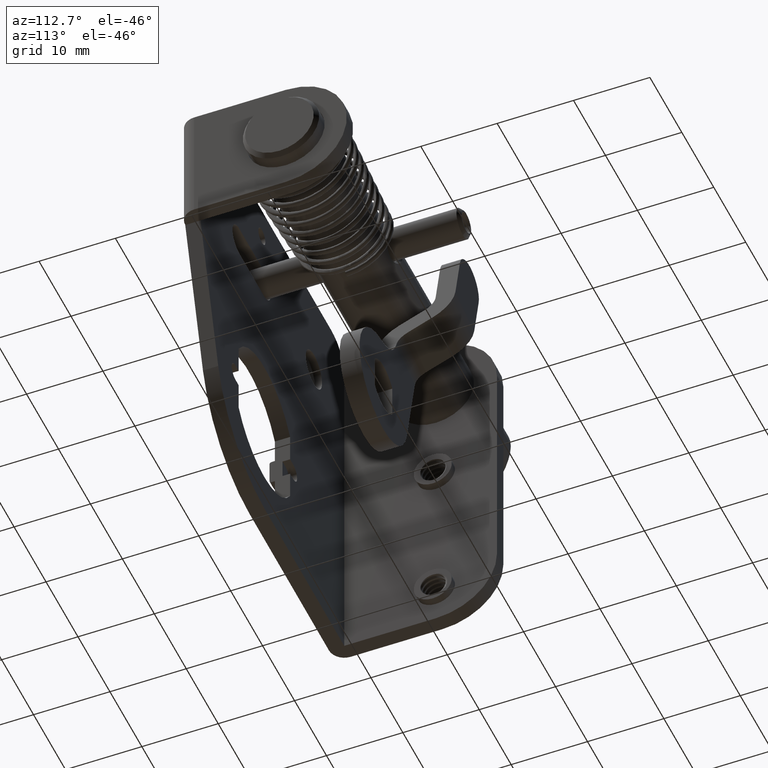
[diagram: clean part render]
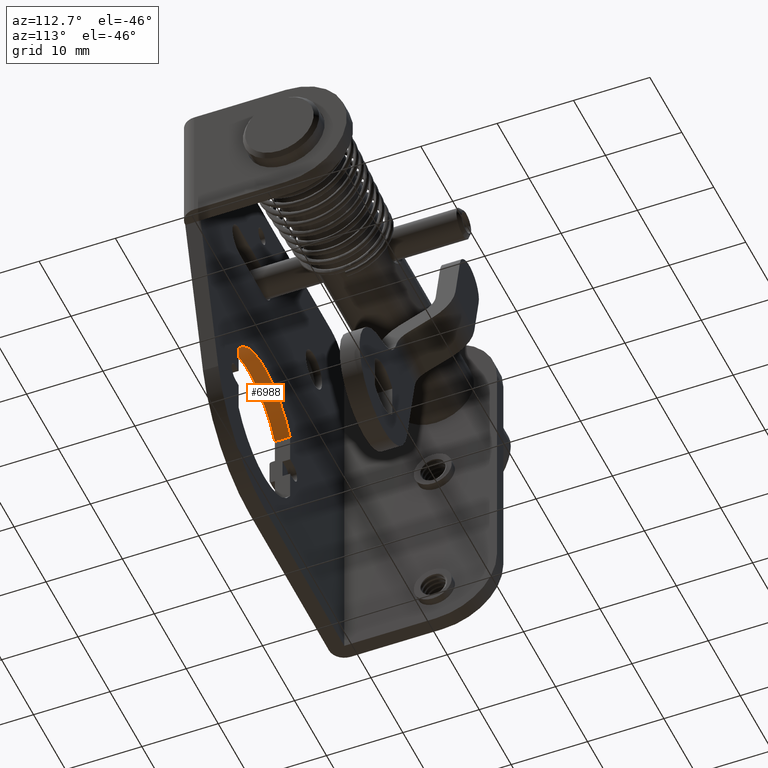
[diagram: same view with one face highlighted and labeled with its STEP entity id]
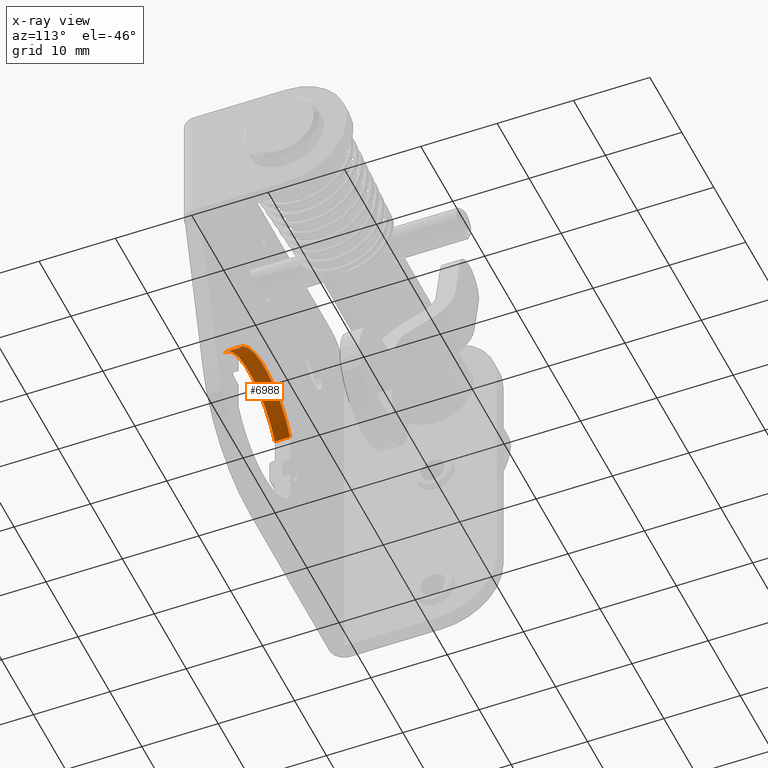
[diagram: x-ray of the same camera — body ghosted, the highlighted face saturated]
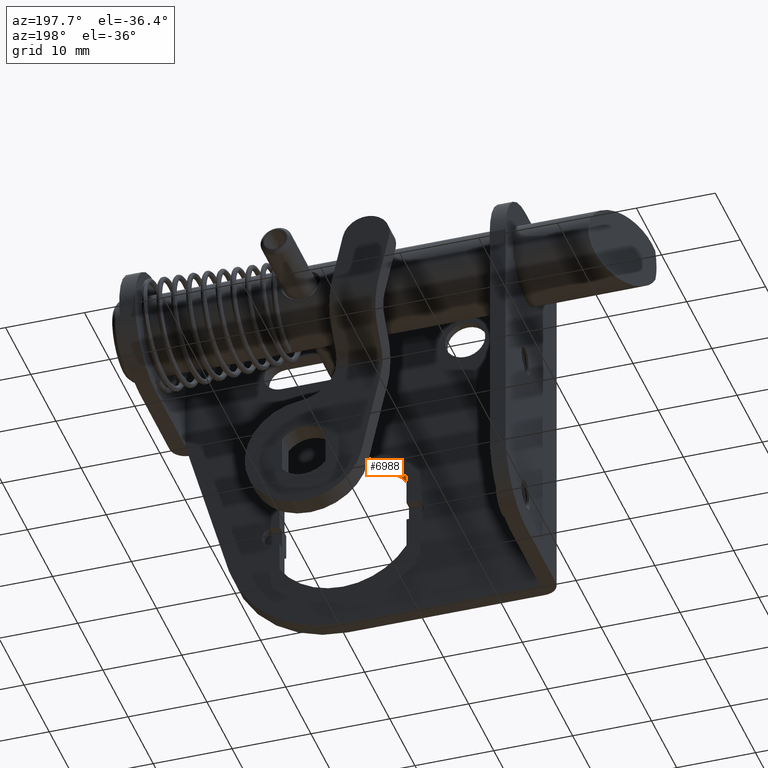
[diagram: same view with one face highlighted and labeled with its STEP entity id]
A machine part, auxiliary view. The second image highlights one B-rep face of the part: STEP entity #6988.
The next image is the same camera in x-ray: the body ghosted, the highlighted face saturated — about 0% of this face is hidden behind the body in this view.
A second angle (auxiliary view) of the same face is appended — the face is thin or edge-on in the first view.
In plain terms, the highlighted cylindrical surface (partial cylindrical patch) has radius 9.55 mm, axis along (0, -1, 0).
Its self-contained STEP definition (entity closure, byte-faithful):
#532 = VERTEX_POINT ( 'NONE', #4385 ) ;
#2027 = VECTOR ( 'NONE', #14333, 1000.000000000000000 ) ;
#2200 = VERTEX_POINT ( 'NONE', #4438 ) ;
#2239 = VERTEX_POINT ( 'NONE', #3531 ) ;
#2320 = CARTESIAN_POINT ( 'NONE',  ( -19.65000000009315100, -14.00000000001370100, -30.75000000042105000 ) ) ;
#2422 = EDGE_LOOP ( 'NONE', ( #5866, #11693, #5582, #10270 ) ) ;
#2528 = DIRECTION ( 'NONE',  ( -0.0000000000000000000, -1.000000000000000000, -0.0000000000000000000 ) ) ;
#2581 = DIRECTION ( 'NONE',  ( 0.0000000000000000000, 0.0000000000000000000, 1.000000000000000000 ) ) ;
#2624 = EDGE_CURVE ( 'NONE', #11927, #2200, #4013, .T. ) ;
#3531 = CARTESIAN_POINT ( 'NONE',  ( -27.70000000008560200, -12.00000000000414100, -25.61190696894304600 ) ) ;
#3963 = LINE ( 'NONE', #7127, #6441 ) ;
#4013 = CIRCLE ( 'NONE', #4045, 9.549999999999998900 ) ;
#4045 = AXIS2_PLACEMENT_3D ( 'NONE', #2320, #2528, #2581 ) ;
#4385 = CARTESIAN_POINT ( 'NONE',  ( -11.60000000008553800, -12.00000000001370100, -25.61190696896670000 ) ) ;
#4438 = CARTESIAN_POINT ( 'NONE',  ( -27.70000000008560200, -14.00000000001370100, -25.61190696894304600 ) ) ;
#4679 = DIRECTION ( 'NONE',  ( 0.0000000000000000000, -1.000000000000000000, 0.0000000000000000000 ) ) ;
#4780 = CARTESIAN_POINT ( 'NONE',  ( -11.60000000008553800, -14.00000000001370100, -25.61190696896670000 ) ) ;
#5007 = CARTESIAN_POINT ( 'NONE',  ( -19.65000000009315100, 200986.0000000000000, -30.75000000042105000 ) ) ;
#5094 = CYLINDRICAL_SURFACE ( 'NONE', #5731, 9.549999999999998900 ) ;
#5236 = LINE ( 'NONE', #9434, #2027 ) ;
#5582 = ORIENTED_EDGE ( 'NONE', *, *, #5862, .F. ) ;
#5731 = AXIS2_PLACEMENT_3D ( 'NONE', #5007, #11098, #12309 ) ;
#5862 = EDGE_CURVE ( 'NONE', #2239, #2200, #3963, .T. ) ;
#5866 = ORIENTED_EDGE ( 'NONE', *, *, #10536, .T. ) ;
#5871 = FACE_OUTER_BOUND ( 'NONE', #2422, .T. ) ;
#5877 = EDGE_CURVE ( 'NONE', #532, #2239, #13310, .T. ) ;
#5948 = CARTESIAN_POINT ( 'NONE',  ( -19.65000000009315100, -12.00000000000414100, -30.75000000042105000 ) ) ;
#6441 = VECTOR ( 'NONE', #4679, 1000.000000000000000 ) ;
#6988 = ADVANCED_FACE ( 'NONE', ( #5871 ), #5094, .F. ) ;
#7127 = CARTESIAN_POINT ( 'NONE',  ( -27.70000000008560200, 200986.0000000000000, -25.61190696894304600 ) ) ;
#7178 = DIRECTION ( 'NONE',  ( 0.0000000000000000000, 0.0000000000000000000, 1.000000000000000000 ) ) ;
#9434 = CARTESIAN_POINT ( 'NONE',  ( -11.60000000008553800, 200986.0000000000000, -25.61190696896670000 ) ) ;
#10270 = ORIENTED_EDGE ( 'NONE', *, *, #5877, .F. ) ;
#10429 = AXIS2_PLACEMENT_3D ( 'NONE', #5948, #14478, #7178 ) ;
#10536 = EDGE_CURVE ( 'NONE', #532, #11927, #5236, .T. ) ;
#11098 = DIRECTION ( 'NONE',  ( 0.0000000000000000000, -1.000000000000000000, 0.0000000000000000000 ) ) ;
#11693 = ORIENTED_EDGE ( 'NONE', *, *, #2624, .T. ) ;
#11927 = VERTEX_POINT ( 'NONE', #4780 ) ;
#12309 = DIRECTION ( 'NONE',  ( 0.0000000000000000000, 0.0000000000000000000, -1.000000000000000000 ) ) ;
#13310 = CIRCLE ( 'NONE', #10429, 9.549999999999998900 ) ;
#14333 = DIRECTION ( 'NONE',  ( 0.0000000000000000000, -1.000000000000000000, 0.0000000000000000000 ) ) ;
#14478 = DIRECTION ( 'NONE',  ( -0.0000000000000000000, -1.000000000000000000, -0.0000000000000000000 ) ) ;